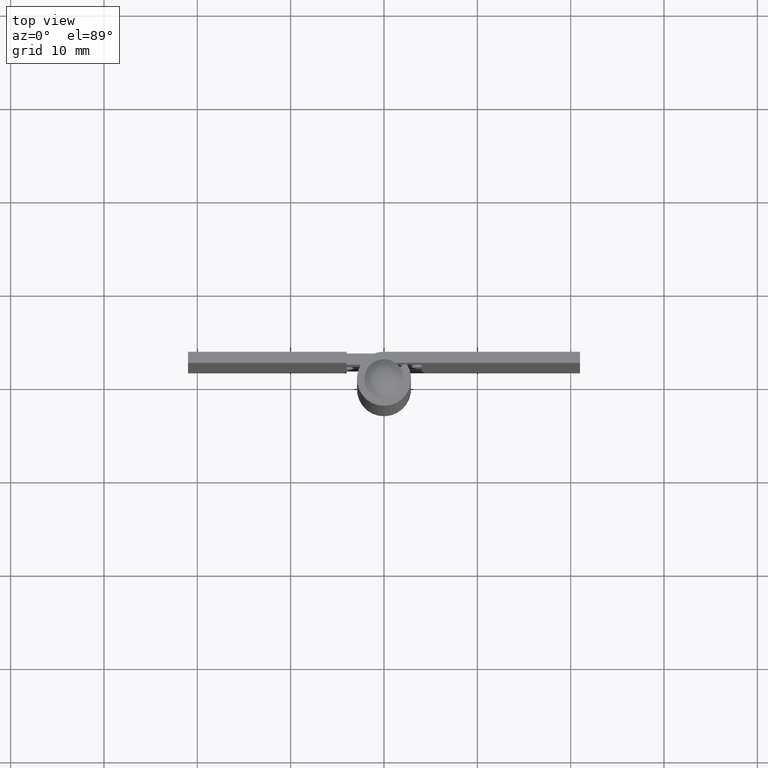
[diagram: clean part render]
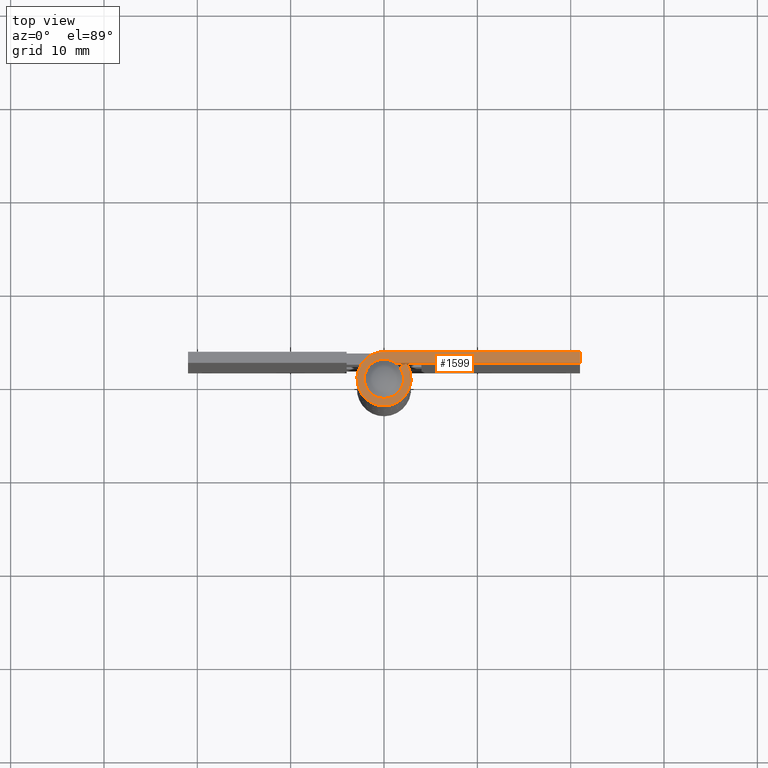
[diagram: same view with one face highlighted and labeled with its STEP entity id]
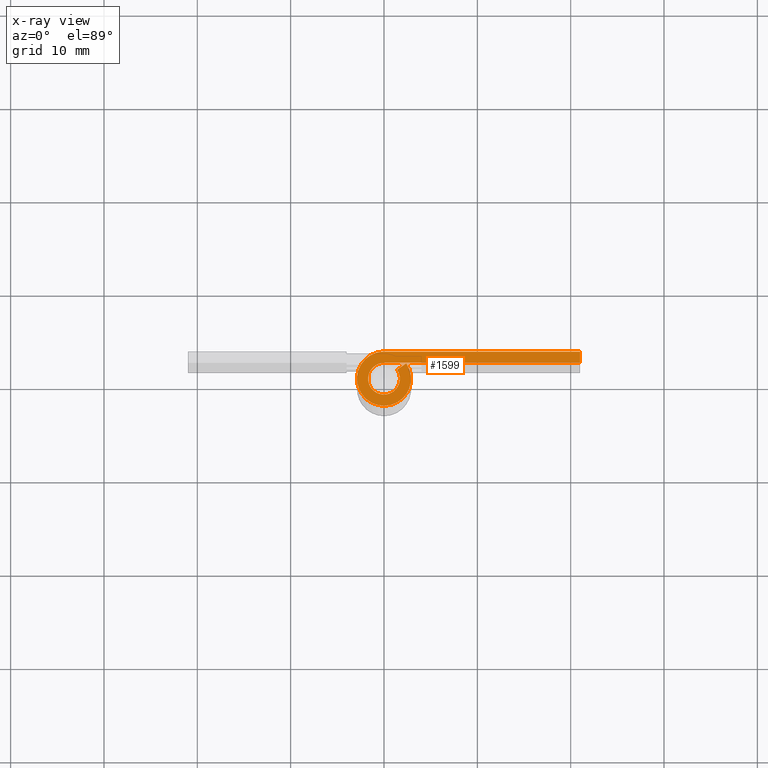
[diagram: x-ray of the same camera — body ghosted, the highlighted face saturated]
A machine part, top view. The second image highlights one B-rep face of the part: STEP entity #1599.
The next image is the same camera in x-ray: the body ghosted, the highlighted face saturated — about 0% of this face is hidden behind the body in this view.
In plain terms, the highlighted face is a freeform B-spline surface patch.
Its self-contained STEP definition (entity closure, byte-faithful):
#874=CARTESIAN_POINT('',(2.384848264526935,1.650003137932380,64.0));
#875=VERTEX_POINT('',#874);
#890=CARTESIAN_POINT('',(1.398015180469630,0.967243689656523,64.0));
#891=VERTEX_POINT('',#890);
#897=CARTESIAN_POINT('',(1.398015180469630,0.967243689656523,64.0));
#898=CARTESIAN_POINT('',(2.384848264526935,1.650003137932380,64.0));
#899=QUASI_UNIFORM_CURVE('',1,(#897,#898),.UNSPECIFIED.,.F.,.U.);
#900=EDGE_CURVE('',#891,#875,#899,.T.);
#958=CARTESIAN_POINT('',(0.0,1.700001999999970,64.0));
#959=VERTEX_POINT('',#958);
#965=CARTESIAN_POINT('',(1.398015180469630,0.967243689656523,64.0));
#966=CARTESIAN_POINT('',(1.518749438151922,0.793098256929561,63.999999999999922));
#967=CARTESIAN_POINT('',(1.654645555262124,0.486547034366917,64.000000000000071));
#968=CARTESIAN_POINT('',(1.719368190156246,-0.018239895085884,63.999999999999993));
#969=CARTESIAN_POINT('',(1.659750788261089,-0.467035721623226,64.000000000000043));
#970=CARTESIAN_POINT('',(1.479271086716453,-0.867783180419702,63.999999999999929));
#971=CARTESIAN_POINT('',(1.221215438979326,-1.206240525643580,63.999999999999552));
#972=CARTESIAN_POINT('',(0.906870386712876,-1.460689669156505,64.000000000000668));
#973=CARTESIAN_POINT('',(0.495896836634110,-1.644609070221951,63.999999999999019));
#974=CARTESIAN_POINT('',(0.121359446322459,-1.709493765131006,64.000000000000512));
#975=CARTESIAN_POINT('',(-0.244419995781978,-1.692416902704166,63.999999999999559));
#976=CARTESIAN_POINT('',(-0.543752233205766,-1.621215155028052,64.000000000000384));
#977=CARTESIAN_POINT('',(-0.834871954464976,-1.491047384336934,64.000000000000867));
#978=CARTESIAN_POINT('',(-1.079289297394298,-1.324894296998438,64.000000000000412));
#979=CARTESIAN_POINT('',(-1.332834101112210,-1.077338640355792,63.999999999999567));
#980=CARTESIAN_POINT('',(-1.566915091386161,-0.719441286941058,63.999999999999908));
#981=CARTESIAN_POINT('',(-1.695638662089755,-0.285390244126941,64.000000000001137));
#982=CARTESIAN_POINT('',(-1.708461133559931,0.164154388817195,63.999999999996717));
#983=CARTESIAN_POINT('',(-1.634123837196755,0.512636485738122,64.000000000001108));
#984=CARTESIAN_POINT('',(-1.476024378386213,0.868584781210885,63.999999999999531));
#985=CARTESIAN_POINT('',(-1.239556697953872,1.195995386461468,64.000000000000227));
#986=CARTESIAN_POINT('',(-0.902442626633220,1.460122893652688,63.999999999999908));
#987=CARTESIAN_POINT('',(-0.482526008341826,1.650585877154738,64.000000000000014));
#988=CARTESIAN_POINT('',(-0.188341870591500,1.700113945370768,63.999999999999993));
#989=CARTESIAN_POINT('',(0.0,1.700001999999970,64.0));
#990=B_SPLINE_CURVE_WITH_KNOTS('',3,(#965,#966,#967,#968,#969,#970,#971,#972,#973,#974,#975,#976,#977,#978,#979,#980,#981,#982,#983,#984,#985,#986,#987,#988,#989),.UNSPECIFIED.,.F.,.U.,(4,1,1,1,1,1,1,1,1,1,1,1,1,1,1,1,1,1,1,1,1,1,4),(0.000000322184167,0.635616534740196,0.988762486691247,1.518482538055808,1.977548766241977,2.295335851875108,2.789712380579857,3.178174385789955,3.637258017705906,3.919778030258343,4.272907315576018,4.555376944846984,4.873181896877727,5.155699246476468,5.614784039923549,6.144498099094476,6.497619357821883,6.956649375993147,7.203850264721257,7.662941324092940,8.157332919476326,8.475169189584998,9.040156345573232),.UNSPECIFIED.);
#991=EDGE_CURVE('',#891,#959,#990,.T.);
#1144=CARTESIAN_POINT('',(21.0,1.700001000000000,64.0));
#1145=VERTEX_POINT('',#1144);
#1151=CARTESIAN_POINT('',(21.0,1.700001000000000,64.0));
#1152=CARTESIAN_POINT('',(0.0,1.700001999999970,64.0));
#1153=QUASI_UNIFORM_CURVE('',1,(#1151,#1152),.UNSPECIFIED.,.F.,.U.);
#1154=EDGE_CURVE('',#1145,#959,#1153,.T.);
#1187=CARTESIAN_POINT('',(0.0,2.900002000000000,64.0));
#1188=VERTEX_POINT('',#1187);
#1230=CARTESIAN_POINT('',(2.384848264526935,1.650003137932380,64.0));
#1231=CARTESIAN_POINT('',(2.476246808553350,1.517916649032505,63.999999999999950));
#1232=CARTESIAN_POINT('',(2.652107297623267,1.212298361124550,63.999999999999957));
#1233=CARTESIAN_POINT('',(2.820533798730171,0.736814721821945,64.000000000000270));
#1234=CARTESIAN_POINT('',(2.904290857026576,0.230090217984858,63.999999999999780));
#1235=CARTESIAN_POINT('',(2.902999577099113,-0.354520100877242,64.000000000000341));
#1236=CARTESIAN_POINT('',(2.767017891355467,-0.947002781030132,63.999999999998323));
#1237=CARTESIAN_POINT('',(2.517576252793832,-1.464562844612376,64.000000000002601));
#1238=CARTESIAN_POINT('',(2.229299534036011,-1.877125511573560,63.999999999998053));
#1239=CARTESIAN_POINT('',(1.874094093930128,-2.235273817414512,64.000000000000028));
#1240=CARTESIAN_POINT('',(1.433994440338998,-2.538019863249175,64.000000000000810));
#1241=CARTESIAN_POINT('',(0.920006777076195,-2.771277428995943,63.999999999999567));
#1242=CARTESIAN_POINT('',(0.279476233440191,-2.916932834763959,63.999999999999673));
#1243=CARTESIAN_POINT('',(-0.388996405918919,-2.899656675079276,64.000000000001705));
#1244=CARTESIAN_POINT('',(-1.033120709685191,-2.732197972402759,63.999999999997513));
#1245=CARTESIAN_POINT('',(-1.575879452815064,-2.461952031015429,64.000000000000540));
#1246=CARTESIAN_POINT('',(-2.038900594207776,-2.087411041474231,64.000000000000398));
#1247=CARTESIAN_POINT('',(-2.356497758644149,-1.709198920974125,63.999999999999858));
#1248=CARTESIAN_POINT('',(-2.613293050563318,-1.288454908642442,64.000000000000014));
#1249=CARTESIAN_POINT('',(-2.782523214928296,-0.866923810560233,63.999999999999979));
#1250=CARTESIAN_POINT('',(-2.902343560754799,-0.305974500623505,64.000000000000014));
#1251=CARTESIAN_POINT('',(-2.912335077073460,0.240278592681119,64.0));
#1252=CARTESIAN_POINT('',(-2.805041077751836,0.784140704414097,64.0));
#1253=CARTESIAN_POINT('',(-2.636820683815972,1.237076620984599,63.999999999999979));
#1254=CARTESIAN_POINT('',(-2.363050075552268,1.719120938512014,64.000000000000128));
#1255=CARTESIAN_POINT('',(-1.944934542441323,2.186788195531112,64.000000000000227));
#1256=CARTESIAN_POINT('',(-1.372750396742252,2.584648372632955,63.999999999997357));
#1257=CARTESIAN_POINT('',(-0.722834427443229,2.839598881391344,64.000000000007716));
#1258=CARTESIAN_POINT('',(-0.240951384378107,2.900066729261097,63.999999999992149));
#1259=CARTESIAN_POINT('',(0.0,2.900002000000000,64.0));
#1260=B_SPLINE_CURVE_WITH_KNOTS('',3,(#1230,#1231,#1232,#1233,#1234,#1235,#1236,#1237,#1238,#1239,#1240,#1241,#1242,#1243,#1244,#1245,#1246,#1247,#1248,#1249,#1250,#1251,#1252,#1253,#1254,#1255,#1256,#1257,#1258,#1259),.UNSPECIFIED.,.F.,.U.,(4,1,1,1,1,1,1,1,1,1,1,1,1,1,1,1,1,1,1,1,1,1,1,1,1,1,1,4),(0.000000359963922,0.481878738990776,1.054165231920036,1.505973164562599,2.018014837023298,2.801142201472619,3.313172984218872,3.734862933725843,4.307069719236104,4.819111052918409,5.331158440745002,5.993802113517477,6.776930423892191,7.319094371077824,7.981672502831361,8.584070799897258,9.096109219926063,9.457546269340357,10.059949741607101,10.451516292559550,11.174399858393841,11.686366875758340,12.108056435287780,12.620087365329960,13.342975041270140,13.975495119682870,14.698386145329881,15.421227777951650),.UNSPECIFIED.);
#1261=EDGE_CURVE('',#875,#1188,#1260,.T.);
#1576=CARTESIAN_POINT('',(-4.093798886560141,-3.189678973707522,64.0));
#1577=CARTESIAN_POINT('',(22.193805306068281,-3.189678973707522,64.0));
#1578=CARTESIAN_POINT('',(-4.093798886560141,3.189710763886654,64.0));
#1579=CARTESIAN_POINT('',(22.193805306068281,3.189710763886654,64.0));
#1580=B_SPLINE_SURFACE_WITH_KNOTS('',1,1,((#1576,#1578),(#1577,#1579)),.UNSPECIFIED.,.F.,.F.,.U.,(2,2),(2,2),(0.0,26.287604192628422),(0.0,6.379389737594176),.UNSPECIFIED.);
#1581=ORIENTED_EDGE('',*,*,#1261,.F.);
#1582=ORIENTED_EDGE('',*,*,#900,.F.);
#1583=ORIENTED_EDGE('',*,*,#991,.T.);
#1584=ORIENTED_EDGE('',*,*,#1154,.F.);
#1585=CARTESIAN_POINT('',(21.0,2.900002000000000,64.0));
#1586=VERTEX_POINT('',#1585);
#1587=CARTESIAN_POINT('',(21.0,2.900002000000000,64.0));
#1588=CARTESIAN_POINT('',(21.0,1.700001000000000,64.0));
#1589=QUASI_UNIFORM_CURVE('',1,(#1587,#1588),.UNSPECIFIED.,.F.,.U.);
#1590=EDGE_CURVE('',#1586,#1145,#1589,.T.);
#1591=ORIENTED_EDGE('',*,*,#1590,.F.);
#1592=CARTESIAN_POINT('',(0.0,2.900002000000000,64.0));
#1593=CARTESIAN_POINT('',(21.0,2.900002000000000,64.0));
#1594=QUASI_UNIFORM_CURVE('',1,(#1592,#1593),.UNSPECIFIED.,.F.,.U.);
#1595=EDGE_CURVE('',#1188,#1586,#1594,.T.);
#1596=ORIENTED_EDGE('',*,*,#1595,.F.);
#1597=EDGE_LOOP('',(#1581,#1582,#1583,#1584,#1591,#1596));
#1598=FACE_OUTER_BOUND('',#1597,.T.);
#1599=ADVANCED_FACE('',(#1598),#1580,.T.);